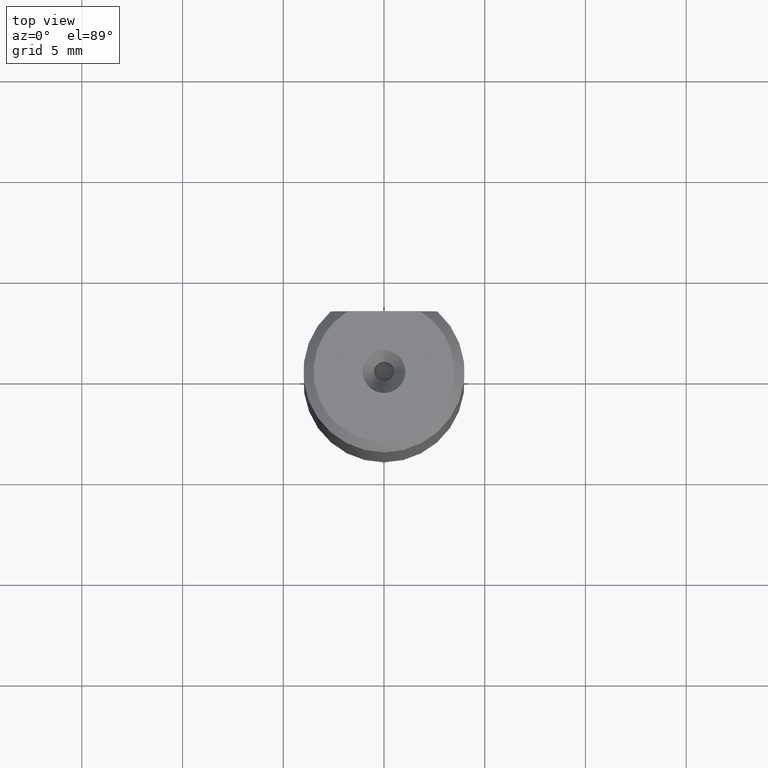
[diagram: clean part render]
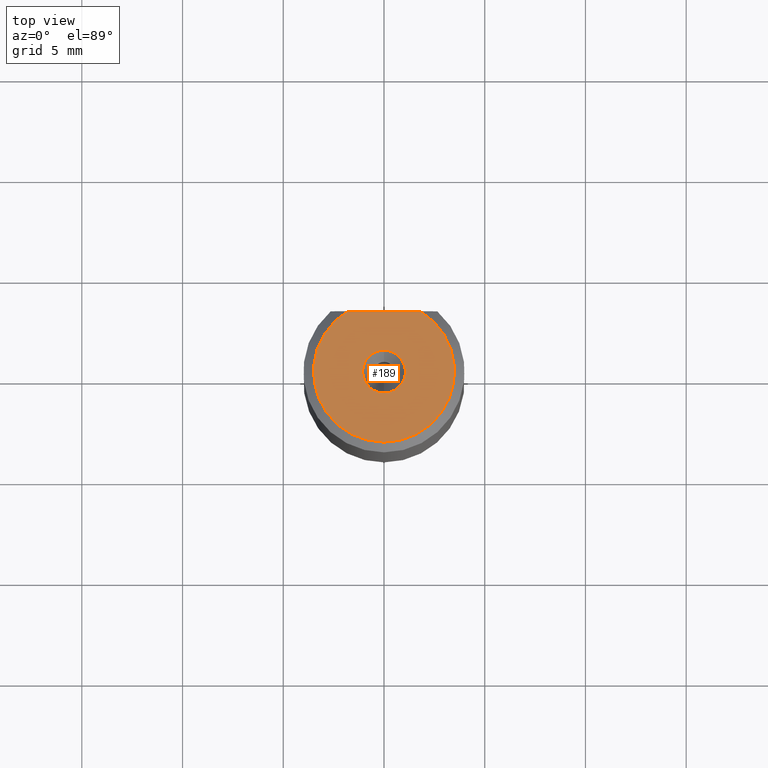
[diagram: same view with one face highlighted and labeled with its STEP entity id]
A machine part, top view. The second image highlights one B-rep face of the part: STEP entity #189.
In plain terms, the highlighted planar face has unit normal (0, 0, 1).
Its self-contained STEP definition (entity closure, byte-faithful):
#189=ADVANCED_FACE('',(#273,#274),#253,.T.);
#253=PLANE('',#1221);
#273=FACE_BOUND('',#279,.T.);
#274=FACE_BOUND('',#280,.T.);
#279=EDGE_LOOP('',(#486,#487,#488));
#280=EDGE_LOOP('',(#489,#490));
#346=LINE('',#1733,#416);
#416=VECTOR('',#1379,1.);
#486=ORIENTED_EDGE('',*,*,#934,.F.);
#487=ORIENTED_EDGE('',*,*,#935,.F.);
#488=ORIENTED_EDGE('',*,*,#936,.T.);
#489=ORIENTED_EDGE('',*,*,#937,.F.);
#490=ORIENTED_EDGE('',*,*,#938,.F.);
#824=VERTEX_POINT('',#1729);
#825=VERTEX_POINT('',#1730);
#826=VERTEX_POINT('',#1732);
#827=VERTEX_POINT('',#1735);
#828=VERTEX_POINT('',#1736);
#934=EDGE_CURVE('',#824,#825,#1103,.T.);
#935=EDGE_CURVE('',#826,#824,#1104,.T.);
#936=EDGE_CURVE('',#826,#825,#346,.T.);
#937=EDGE_CURVE('',#827,#828,#1105,.T.);
#938=EDGE_CURVE('',#828,#827,#1106,.T.);
#1103=CIRCLE('',#1217,3.5);
#1104=CIRCLE('',#1218,3.5);
#1105=CIRCLE('',#1219,1.06);
#1106=CIRCLE('',#1220,1.06);
#1217=AXIS2_PLACEMENT_3D('',#1728,#1375,#1376);
#1218=AXIS2_PLACEMENT_3D('',#1731,#1377,#1378);
#1219=AXIS2_PLACEMENT_3D('',#1734,#1380,#1381);
#1220=AXIS2_PLACEMENT_3D('',#1737,#1382,#1383);
#1221=AXIS2_PLACEMENT_3D('',#1738,#1384,#1385);
#1375=DIRECTION('',(0.,0.,-1.));
#1376=DIRECTION('',(0.,-1.,0.));
#1377=DIRECTION('',(0.,0.,-1.));
#1378=DIRECTION('',(0.515078753637684,0.857142857142874,0.));
#1379=DIRECTION('',(-1.,0.,0.));
#1380=DIRECTION('',(0.,0.,1.));
#1381=DIRECTION('',(0.,-1.,0.));
#1382=DIRECTION('',(0.,0.,1.));
#1383=DIRECTION('',(0.,1.,0.));
#1384=DIRECTION('',(0.,0.,1.));
#1385=DIRECTION('',(0.,1.,0.));
#1728=CARTESIAN_POINT('',(0.,0.,-2.39808173319E-14));
#1729=CARTESIAN_POINT('',(0.,-3.5,-2.30926389122E-14));
#1730=CARTESIAN_POINT('',(-1.80277563773199,3.,-1.199040866595E-14));
#1731=CARTESIAN_POINT('',(0.,0.,-2.30926389122E-14));
#1732=CARTESIAN_POINT('',(1.80277563773199,3.,-1.15463194561E-14));
#1733=CARTESIAN_POINT('',(1.802775637732,3.,0.));
#1734=CARTESIAN_POINT('',(0.,0.,0.));
#1735=CARTESIAN_POINT('',(0.,-1.06,0.));
#1736=CARTESIAN_POINT('',(0.,1.06,0.));
#1737=CARTESIAN_POINT('',(0.,0.,0.));
#1738=CARTESIAN_POINT('',(-2.994028656222E-6,-0.25,0.));